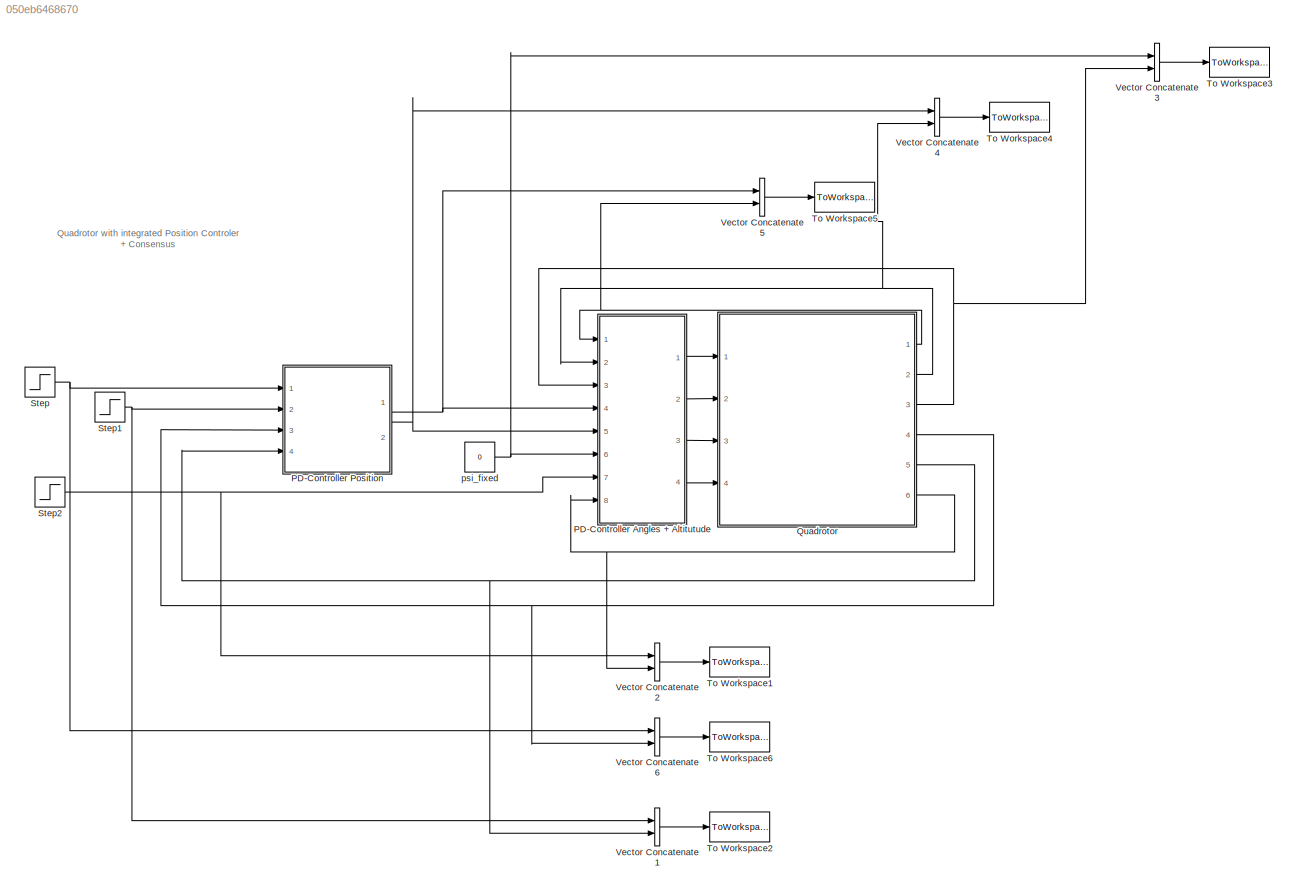
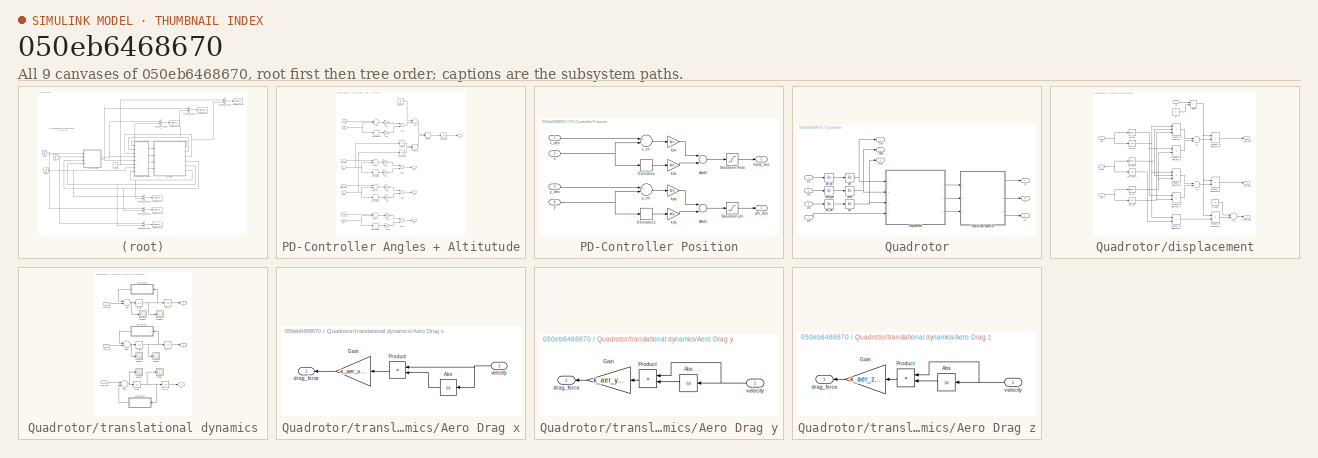
[diagram: thumbnail index - all 9 canvases of the model, root first then tree order]
MODEL slx_050eb6468670
KIND model
CONFIG AbsTol = auto
CONFIG FixedStep = 0.01
CONFIG MaxStep = 0.01
CONFIG MinStep = auto
CONFIG RelTol = 1e-3
CONFIG SampleTimeConstraint = Unconstrained
CONFIG Solver = ode45
CONFIG SolverMode = Auto
CONFIG SolverName = ode45
CONFIG StartTime = 0.0
CONFIG StopTime = 30
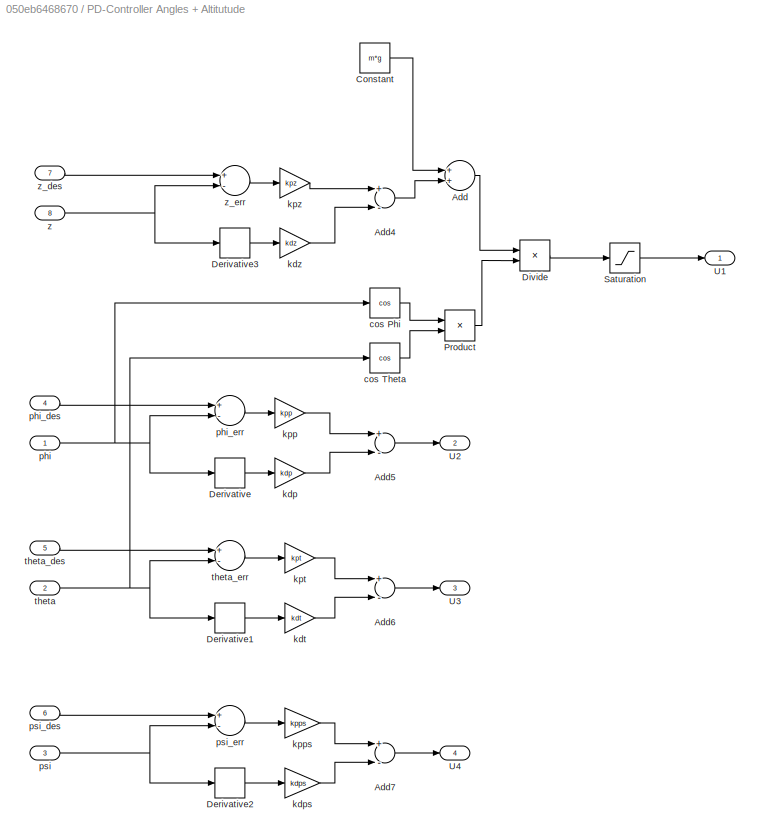
BLOCK [SubSystem] PD-Controller Angles + Altitutude
  Ports = [8, 4]
  RequestExecContextInheritance = off
  Variant = off
BLOCK [Sum] PD-Controller Angles + Altitutude/Add
  InputSameDT = off
  OutDataTypeStr = Inherit: Inherit via internal rule
  Ports = [2, 1]
  SaturateOnIntegerOverflow = off
BLOCK [Sum] PD-Controller Angles + Altitutude/Add4
  InputSameDT = off
  Inputs = +-
  OutDataTypeStr = Inherit: Inherit via internal rule
  Ports = [2, 1]
  SaturateOnIntegerOverflow = off
BLOCK [Sum] PD-Controller Angles + Altitutude/Add5
  InputSameDT = off
  Inputs = +-
  OutDataTypeStr = Inherit: Inherit via internal rule
  Ports = [2, 1]
  SaturateOnIntegerOverflow = off
BLOCK [Sum] PD-Controller Angles + Altitutude/Add6
  InputSameDT = off
  Inputs = +-
  OutDataTypeStr = Inherit: Inherit via internal rule
  Ports = [2, 1]
  SaturateOnIntegerOverflow = off
BLOCK [Sum] PD-Controller Angles + Altitutude/Add7
  InputSameDT = off
  Inputs = +-
  OutDataTypeStr = Inherit: Inherit via internal rule
  Ports = [2, 1]
  SaturateOnIntegerOverflow = off
BLOCK [Constant] PD-Controller Angles + Altitutude/Constant
  Value = m*g
BLOCK [Derivative] PD-Controller Angles + Altitutude/Derivative
BLOCK [Derivative] PD-Controller Angles + Altitutude/Derivative1
BLOCK [Derivative] PD-Controller Angles + Altitutude/Derivative2
BLOCK [Derivative] PD-Controller Angles + Altitutude/Derivative3
BLOCK [Product] PD-Controller Angles + Altitutude/Divide
  InputSameDT = off
  Inputs = */
  OutDataTypeStr = Inherit: Inherit via internal rule
  Ports = [2, 1]
  RndMeth = Floor
  SaturateOnIntegerOverflow = off
BLOCK [Product] PD-Controller Angles + Altitutude/Product
  InputSameDT = off
  OutDataTypeStr = Inherit: Inherit via internal rule
  Ports = [2, 1]
  SaturateOnIntegerOverflow = off
BLOCK [Saturate] PD-Controller Angles + Altitutude/Saturation
  InputPortMap = u0
  LowerLimit = 0
  Ports = [1, 1]
  UpperLimit = f_thrust_limit_up
  ZeroCross = off
BLOCK [Outport] PD-Controller Angles + Altitutude/U1
  IconDisplay = Port number
BLOCK [Outport] PD-Controller Angles + Altitutude/U2
  IconDisplay = Port number
  Port = 2
BLOCK [Outport] PD-Controller Angles + Altitutude/U3
  IconDisplay = Port number
  Port = 3
BLOCK [Outport] PD-Controller Angles + Altitutude/U4
  IconDisplay = Port number
  Port = 4
BLOCK [Trigonometry] PD-Controller Angles + Altitutude/cos Phi
  Operator = cos
  Ports = [1, 1]
BLOCK [Trigonometry] PD-Controller Angles + Altitutude/cos Theta
  Operator = cos
  Ports = [1, 1]
BLOCK [Gain] PD-Controller Angles + Altitutude/kdp
  Gain = kdp
  OutDataTypeStr = Inherit: Inherit via internal rule
  ParamDataTypeStr = Inherit: Inherit via internal rule
  SaturateOnIntegerOverflow = off
BLOCK [Gain] PD-Controller Angles + Altitutude/kdps
  Gain = kdps
  OutDataTypeStr = Inherit: Inherit via internal rule
  ParamDataTypeStr = Inherit: Inherit via internal rule
  SaturateOnIntegerOverflow = off
BLOCK [Gain] PD-Controller Angles + Altitutude/kdt
  Gain = kdt
  OutDataTypeStr = Inherit: Inherit via internal rule
  ParamDataTypeStr = Inherit: Inherit via internal rule
  SaturateOnIntegerOverflow = off
BLOCK [Gain] PD-Controller Angles + Altitutude/kdz
  Gain = kdz
  OutDataTypeStr = Inherit: Inherit via internal rule
  ParamDataTypeStr = Inherit: Inherit via internal rule
  SaturateOnIntegerOverflow = off
BLOCK [Gain] PD-Controller Angles + Altitutude/kpp
  Gain = kpp
  OutDataTypeStr = Inherit: Inherit via internal rule
  ParamDataTypeStr = Inherit: Inherit via internal rule
  SaturateOnIntegerOverflow = off
BLOCK [Gain] PD-Controller Angles + Altitutude/kpps
  Gain = kpps
  OutDataTypeStr = Inherit: Inherit via internal rule
  ParamDataTypeStr = Inherit: Inherit via internal rule
  SaturateOnIntegerOverflow = off
BLOCK [Gain] PD-Controller Angles + Altitutude/kpt
  Gain = kpt
  OutDataTypeStr = Inherit: Inherit via internal rule
  ParamDataTypeStr = Inherit: Inherit via internal rule
  SaturateOnIntegerOverflow = off
BLOCK [Gain] PD-Controller Angles + Altitutude/kpz
  Gain = kpz
  OutDataTypeStr = Inherit: Inherit via internal rule
  ParamDataTypeStr = Inherit: Inherit via internal rule
  SaturateOnIntegerOverflow = off
BLOCK [Inport] PD-Controller Angles + Altitutude/phi
  IconDisplay = Port number
BLOCK [Inport] PD-Controller Angles + Altitutude/phi_des
  IconDisplay = Port number
  Port = 4
BLOCK [Sum] PD-Controller Angles + Altitutude/phi_err
  InputSameDT = off
  Inputs = +-
  OutDataTypeStr = Inherit: Inherit via internal rule
  Ports = [2, 1]
  SaturateOnIntegerOverflow = off
BLOCK [Inport] PD-Controller Angles + Altitutude/psi
  IconDisplay = Port number
  Port = 3
BLOCK [Inport] PD-Controller Angles + Altitutude/psi_des
  IconDisplay = Port number
  Port = 6
BLOCK [Sum] PD-Controller Angles + Altitutude/psi_err
  InputSameDT = off
  Inputs = +-
  OutDataTypeStr = Inherit: Inherit via internal rule
  Ports = [2, 1]
  SaturateOnIntegerOverflow = off
BLOCK [Inport] PD-Controller Angles + Altitutude/theta
  IconDisplay = Port number
  Port = 2
BLOCK [Inport] PD-Controller Angles + Altitutude/theta_des
  IconDisplay = Port number
  Port = 5
BLOCK [Sum] PD-Controller Angles + Altitutude/theta_err
  InputSameDT = off
  Inputs = +-
  OutDataTypeStr = Inherit: Inherit via internal rule
  Ports = [2, 1]
  SaturateOnIntegerOverflow = off
BLOCK [Inport] PD-Controller Angles + Altitutude/z
  IconDisplay = Port number
  Port = 8
BLOCK [Inport] PD-Controller Angles + Altitutude/z_des
  IconDisplay = Port number
  Port = 7
BLOCK [Sum] PD-Controller Angles + Altitutude/z_err
  InputSameDT = off
  Inputs = +-
  OutDataTypeStr = Inherit: Inherit via internal rule
  Ports = [2, 1]
  SaturateOnIntegerOverflow = off
BLOCK [SubSystem] PD-Controller Position
  Ports = [4, 2]
  RequestExecContextInheritance = off
  Variant = off
BLOCK [Sum] PD-Controller Position/Add1
  InputSameDT = off
  Inputs = +-
  OutDataTypeStr = Inherit: Inherit via internal rule
  Ports = [2, 1]
  SaturateOnIntegerOverflow = off
BLOCK [Sum] PD-Controller Position/Add5
  InputSameDT = off
  Inputs = +-
  OutDataTypeStr = Inherit: Inherit via internal rule
  Ports = [2, 1]
  SaturateOnIntegerOverflow = off
BLOCK [Derivative] PD-Controller Position/Derivative
BLOCK [Derivative] PD-Controller Position/Derivative1
BLOCK [Saturate] PD-Controller Position/Saturation phi
  InputPortMap = u0
  LowerLimit = -max_phi
  Ports = [1, 1]
  UpperLimit = max_phi
  ZeroCross = off
BLOCK [Saturate] PD-Controller Position/Saturation theta
  InputPortMap = u0
  LowerLimit = -max_theta
  Ports = [1, 1]
  UpperLimit = max_theta
  ZeroCross = off
BLOCK [Gain] PD-Controller Position/kdx
  Gain = kdx
  OutDataTypeStr = Inherit: Inherit via internal rule
  ParamDataTypeStr = Inherit: Inherit via internal rule
  SaturateOnIntegerOverflow = off
BLOCK [Gain] PD-Controller Position/kdy
  Gain = kdy
  OutDataTypeStr = Inherit: Inherit via internal rule
  ParamDataTypeStr = Inherit: Inherit via internal rule
  SaturateOnIntegerOverflow = off
BLOCK [Gain] PD-Controller Position/kpx
  Gain = kpx
  OutDataTypeStr = Inherit: Inherit via internal rule
  ParamDataTypeStr = Inherit: Inherit via internal rule
  SaturateOnIntegerOverflow = off
BLOCK [Gain] PD-Controller Position/kpy
  Gain = kpy
  OutDataTypeStr = Inherit: Inherit via internal rule
  ParamDataTypeStr = Inherit: Inherit via internal rule
  SaturateOnIntegerOverflow = off
BLOCK [Outport] PD-Controller Position/phi_des
  IconDisplay = Port number
BLOCK [Outport] PD-Controller Position/theta_des
  IconDisplay = Port number
  Port = 2
BLOCK [Inport] PD-Controller Position/x
  IconDisplay = Port number
  Port = 3
BLOCK [Inport] PD-Controller Position/x_des
  IconDisplay = Port number
BLOCK [Sum] PD-Controller Position/x_err
  InputSameDT = off
  Inputs = +-
  OutDataTypeStr = Inherit: Inherit via internal rule
  Ports = [2, 1]
  SaturateOnIntegerOverflow = off
BLOCK [Inport] PD-Controller Position/y
  IconDisplay = Port number
  Port = 4
BLOCK [Inport] PD-Controller Position/y_des
  IconDisplay = Port number
  Port = 2
BLOCK [Sum] PD-Controller Position/y_err
  InputSameDT = off
  Inputs = +-
  OutDataTypeStr = Inherit: Inherit via internal rule
  Ports = [2, 1]
  SaturateOnIntegerOverflow = off
BLOCK [SubSystem] Quadrotor
  Ports = [4, 6]
  RequestExecContextInheritance = off
  Variant = off
BLOCK [Outport] Quadrotor/Phi
  IconDisplay = Port number
BLOCK [Outport] Quadrotor/Psi
  IconDisplay = Port number
  Port = 3
BLOCK [Outport] Quadrotor/Theta
  IconDisplay = Port number
  Port = 2
BLOCK [Inport] Quadrotor/U1
  IconDisplay = Port number
BLOCK [Inport] Quadrotor/U2
  IconDisplay = Port number
  Port = 2
BLOCK [Inport] Quadrotor/U3
  IconDisplay = Port number
  Port = 3
BLOCK [Inport] Quadrotor/U4
  IconDisplay = Port number
  Port = 4
BLOCK [Outport] Quadrotor/X
  IconDisplay = Port number
  Port = 4
BLOCK [Outport] Quadrotor/Y
  IconDisplay = Port number
  Port = 5
BLOCK [Outport] Quadrotor/Z
  IconDisplay = Port number
  Port = 6
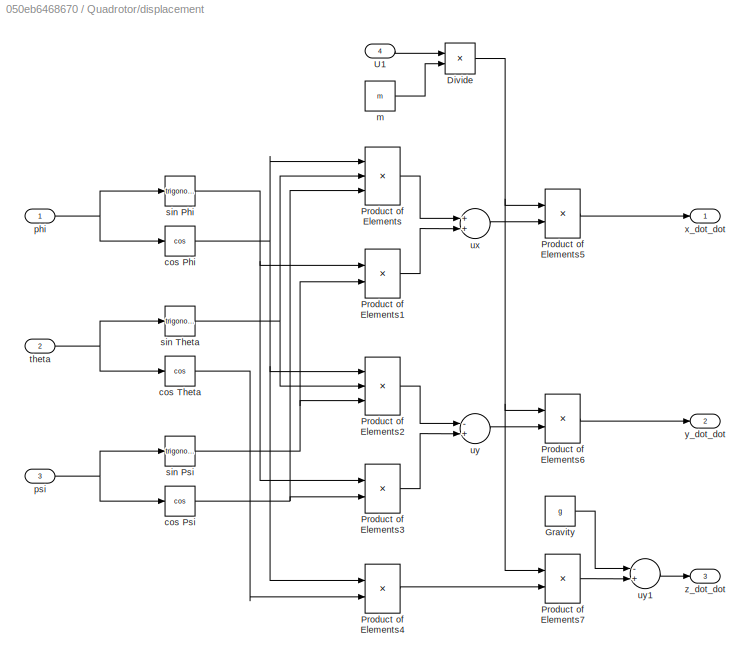
BLOCK [SubSystem] Quadrotor/displacement
  Ports = [4, 3]
  RequestExecContextInheritance = off
  Variant = off
BLOCK [Product] Quadrotor/displacement/Divide
  InputSameDT = off
  Inputs = */
  OutDataTypeStr = Inherit: Inherit via internal rule
  Ports = [2, 1]
  RndMeth = Floor
  SaturateOnIntegerOverflow = off
BLOCK [Constant] Quadrotor/displacement/Gravity
  Value = g
BLOCK [Product] Quadrotor/displacement/Product of Elements
  InputSameDT = off
  Inputs = 3
  OutDataTypeStr = Inherit: Inherit via internal rule
  Ports = [3, 1]
  RndMeth = Floor
  SaturateOnIntegerOverflow = off
BLOCK [Product] Quadrotor/displacement/Product of Elements1
  InputSameDT = off
  OutDataTypeStr = Inherit: Inherit via internal rule
  Ports = [2, 1]
  RndMeth = Floor
  SaturateOnIntegerOverflow = off
BLOCK [Product] Quadrotor/displacement/Product of Elements2
  InputSameDT = off
  Inputs = 3
  OutDataTypeStr = Inherit: Inherit via internal rule
  Ports = [3, 1]
  RndMeth = Floor
  SaturateOnIntegerOverflow = off
BLOCK [Product] Quadrotor/displacement/Product of Elements3
  InputSameDT = off
  OutDataTypeStr = Inherit: Inherit via internal rule
  Ports = [2, 1]
  RndMeth = Floor
  SaturateOnIntegerOverflow = off
BLOCK [Product] Quadrotor/displacement/Product of Elements4
  InputSameDT = off
  OutDataTypeStr = Inherit: Inherit via internal rule
  Ports = [2, 1]
  RndMeth = Floor
  SaturateOnIntegerOverflow = off
BLOCK [Product] Quadrotor/displacement/Product of Elements5
  InputSameDT = off
  OutDataTypeStr = Inherit: Inherit via internal rule
  Ports = [2, 1]
  RndMeth = Floor
  SaturateOnIntegerOverflow = off
BLOCK [Product] Quadrotor/displacement/Product of Elements6
  InputSameDT = off
  OutDataTypeStr = Inherit: Inherit via internal rule
  Ports = [2, 1]
  RndMeth = Floor
  SaturateOnIntegerOverflow = off
BLOCK [Product] Quadrotor/displacement/Product of Elements7
  InputSameDT = off
  OutDataTypeStr = Inherit: Inherit via internal rule
  Ports = [2, 1]
  RndMeth = Floor
  SaturateOnIntegerOverflow = off
BLOCK [Inport] Quadrotor/displacement/U1
  IconDisplay = Port number
  Port = 4
BLOCK [Trigonometry] Quadrotor/displacement/cos Phi
  Operator = cos
  Ports = [1, 1]
BLOCK [Trigonometry] Quadrotor/displacement/cos Psi
  Operator = cos
  Ports = [1, 1]
BLOCK [Trigonometry] Quadrotor/displacement/cos Theta
  Operator = cos
  Ports = [1, 1]
BLOCK [Constant] Quadrotor/displacement/m
  Value = m
BLOCK [Inport] Quadrotor/displacement/phi
  IconDisplay = Port number
BLOCK [Inport] Quadrotor/displacement/psi
  IconDisplay = Port number
  Port = 3
BLOCK [Trigonometry] Quadrotor/displacement/sin Phi
  Ports = [1, 1]
BLOCK [Trigonometry] Quadrotor/displacement/sin Psi
  Ports = [1, 1]
BLOCK [Trigonometry] Quadrotor/displacement/sin Theta
  Ports = [1, 1]
BLOCK [Inport] Quadrotor/displacement/theta
  IconDisplay = Port number
  Port = 2
BLOCK [Sum] Quadrotor/displacement/ux
  InputSameDT = off
  OutDataTypeStr = Inherit: Inherit via internal rule
  Ports = [2, 1]
  SaturateOnIntegerOverflow = off
BLOCK [Sum] Quadrotor/displacement/uy
  InputSameDT = off
  Inputs = -+
  OutDataTypeStr = Inherit: Inherit via internal rule
  Ports = [2, 1]
  SaturateOnIntegerOverflow = off
BLOCK [Sum] Quadrotor/displacement/uy1
  InputSameDT = off
  Inputs = -+
  OutDataTypeStr = Inherit: Inherit via internal rule
  Ports = [2, 1]
  SaturateOnIntegerOverflow = off
BLOCK [Outport] Quadrotor/displacement/x_dot_dot
  IconDisplay = Port number
BLOCK [Outport] Quadrotor/displacement/y_dot_dot
  IconDisplay = Port number
  Port = 2
BLOCK [Outport] Quadrotor/displacement/z_dot_dot
  IconDisplay = Port number
  Port = 3
BLOCK [Integrator] Quadrotor/phi
  Ports = [1, 1]
  ZeroCross = off
BLOCK [Integrator] Quadrotor/phi_dot
  Ports = [1, 1]
BLOCK [Integrator] Quadrotor/psi
  Ports = [1, 1]
  ZeroCross = off
BLOCK [Integrator] Quadrotor/psi_dot
  Ports = [1, 1]
  ZeroCross = off
BLOCK [Integrator] Quadrotor/theta
  Ports = [1, 1]
  ZeroCross = off
BLOCK [Integrator] Quadrotor/theta_dot
  Ports = [1, 1]
  ZeroCross = off
BLOCK [SubSystem] Quadrotor/translational dynamics
  Ports = [3, 3]
  RequestExecContextInheritance = off
  Variant = off
BLOCK [Integrator] Quadrotor/translational dynamics/Act X
  Ports = [1, 1]
BLOCK [Integrator] Quadrotor/translational dynamics/Act Y
  Ports = [1, 1]
BLOCK [Integrator] Quadrotor/translational dynamics/Act Z
  Ports = [1, 1]
BLOCK [Sum] Quadrotor/translational dynamics/Add
  InputSameDT = off
  Inputs = -+
  OutDataTypeStr = Inherit: Inherit via internal rule
  Ports = [2, 1]
  SaturateOnIntegerOverflow = off
BLOCK [Sum] Quadrotor/translational dynamics/Add1
  InputSameDT = off
  Inputs = -+
  OutDataTypeStr = Inherit: Inherit via internal rule
  Ports = [2, 1]
  SaturateOnIntegerOverflow = off
BLOCK [Sum] Quadrotor/translational dynamics/Add2
  InputSameDT = off
  Inputs = +-
  OutDataTypeStr = Inherit: Inherit via internal rule
  Ports = [2, 1]
  SaturateOnIntegerOverflow = off
BLOCK [SubSystem] Quadrotor/translational dynamics/Aero Drag x
  Ports = [1, 1]
  RequestExecContextInheritance = off
  Variant = off
BLOCK [Abs] Quadrotor/translational dynamics/Aero Drag x/Abs
  SaturateOnIntegerOverflow = off
BLOCK [Gain] Quadrotor/translational dynamics/Aero Drag x/Gain
  Gain = k_aer_x/m
  OutDataTypeStr = Inherit: Inherit via internal rule
  ParamDataTypeStr = Inherit: Inherit via internal rule
  SaturateOnIntegerOverflow = off
BLOCK [Product] Quadrotor/translational dynamics/Aero Drag x/Product
  InputSameDT = off
  OutDataTypeStr = Inherit: Inherit via internal rule
  Ports = [2, 1]
  RndMeth = Floor
  SaturateOnIntegerOverflow = off
BLOCK [Outport] Quadrotor/translational dynamics/Aero Drag x/drag_force
  IconDisplay = Port number
BLOCK [Inport] Quadrotor/translational dynamics/Aero Drag x/velocity
  IconDisplay = Port number
BLOCK [SubSystem] Quadrotor/translational dynamics/Aero Drag y
  Ports = [1, 1]
  RequestExecContextInheritance = off
  Variant = off
BLOCK [Abs] Quadrotor/translational dynamics/Aero Drag y/Abs
  SaturateOnIntegerOverflow = off
BLOCK [Gain] Quadrotor/translational dynamics/Aero Drag y/Gain
  Gain = k_aer_y/m
  OutDataTypeStr = Inherit: Inherit via internal rule
  ParamDataTypeStr = Inherit: Inherit via internal rule
  SaturateOnIntegerOverflow = off
BLOCK [Product] Quadrotor/translational dynamics/Aero Drag y/Product
  InputSameDT = off
  OutDataTypeStr = Inherit: Inherit via internal rule
  Ports = [2, 1]
  RndMeth = Floor
  SaturateOnIntegerOverflow = off
BLOCK [Outport] Quadrotor/translational dynamics/Aero Drag y/drag_force
  IconDisplay = Port number
BLOCK [Inport] Quadrotor/translational dynamics/Aero Drag y/velocity
  IconDisplay = Port number
BLOCK [SubSystem] Quadrotor/translational dynamics/Aero Drag z
  Ports = [1, 1]
  RequestExecContextInheritance = off
  Variant = off
BLOCK [Abs] Quadrotor/translational dynamics/Aero Drag z/Abs
  SaturateOnIntegerOverflow = off
BLOCK [Gain] Quadrotor/translational dynamics/Aero Drag z/Gain
  Gain = k_aer_z/m
  OutDataTypeStr = Inherit: Inherit via internal rule
  ParamDataTypeStr = Inherit: Inherit via internal rule
  SaturateOnIntegerOverflow = off
BLOCK [Product] Quadrotor/translational dynamics/Aero Drag z/Product
  InputSameDT = off
  OutDataTypeStr = Inherit: Inherit via internal rule
  Ports = [2, 1]
  RndMeth = Floor
  SaturateOnIntegerOverflow = off
BLOCK [Outport] Quadrotor/translational dynamics/Aero Drag z/drag_force
  IconDisplay = Port number
BLOCK [Inport] Quadrotor/translational dynamics/Aero Drag z/velocity
  IconDisplay = Port number
BLOCK [Scope] Quadrotor/translational dynamics/Scope
  Ports = [1]
  ScopeSpecificationString = Simulink.scopes.TimeScopeBlockCfg('CurrentConfiguration', extmgr.ConfigurationSet(extmgr.Configuration('Core','General UI',true),extmgr.Configuration('Core','Source UI',true),extmgr.Configuration('Sources','WiredSimulink',true,'DataLoggingVariableName','ScopeData1'),extmgr.Configuration('Visuals','Time Domain',true,'SerializedDisplays',{struct('MinYLimReal','-0.00000000000000005','MaxYLimReal','0....<+1506ch>
BLOCK [Scope] Quadrotor/translational dynamics/Scope1
  Ports = [1]
  ScopeSpecificationString = Simulink.scopes.TimeScopeBlockCfg('CurrentConfiguration', extmgr.ConfigurationSet(extmgr.Configuration('Core','General UI',true),extmgr.Configuration('Core','Source UI',true),extmgr.Configuration('Sources','WiredSimulink',true,'DataLoggingVariableName','ScopeData2'),extmgr.Configuration('Visuals','Time Domain',true,'SerializedDisplays',{struct('MinYLimReal','-0.74786','MaxYLimReal','0.74343','YLab...<+1443ch>
BLOCK [Scope] Quadrotor/translational dynamics/Scope2
  Ports = [1]
  ScopeSpecificationString = Simulink.scopes.TimeScopeBlockCfg('CurrentConfiguration', extmgr.ConfigurationSet(extmgr.Configuration('Core','General UI',true),extmgr.Configuration('Core','Source UI',true),extmgr.Configuration('Sources','WiredSimulink',true,'DataLoggingVariableName','ScopeData3'),extmgr.Configuration('Visuals','Time Domain',true,'SerializedDisplays',{struct('MinYLimReal','1.48414','MaxYLimReal','1.49781','YLabe...<+1433ch>
BLOCK [Scope] Quadrotor/translational dynamics/Scope3
  Ports = [1]
  ScopeSpecificationString = Simulink.scopes.TimeScopeBlockCfg('CurrentConfiguration', extmgr.ConfigurationSet(extmgr.Configuration('Core','General UI',true),extmgr.Configuration('Core','Source UI',true),extmgr.Configuration('Sources','WiredSimulink',true,'DataLoggingVariableName','ScopeData1'),extmgr.Configuration('Visuals','Time Domain',true,'SerializedDisplays',{struct('MinYLimReal','-1.03462','MaxYLimReal','0.71134','YLab...<+1436ch>
BLOCK [Scope] Quadrotor/translational dynamics/Scope4
  Ports = [1]
  ScopeSpecificationString = Simulink.scopes.TimeScopeBlockCfg('CurrentConfiguration', extmgr.ConfigurationSet(extmgr.Configuration('Core','General UI',true),extmgr.Configuration('Core','Source UI',true),extmgr.Configuration('Sources','WiredSimulink',true,'DataLoggingVariableName','ScopeData2'),extmgr.Configuration('Visuals','Time Domain',true,'SerializedDisplays',{struct('MinYLimReal','-11.03625','MaxYLimReal','1.22625','YLa...<+1413ch>
BLOCK [Scope] Quadrotor/translational dynamics/Scope5
  Ports = [1]
  ScopeSpecificationString = C++SS(StrPVP('SaveName','ScopeData1'),StrPVP('SaveName','ScopeData3'))
BLOCK [Outport] Quadrotor/translational dynamics/X
  IconDisplay = Port number
BLOCK [Integrator] Quadrotor/translational dynamics/X dot
  Ports = [1, 1]
BLOCK [Outport] Quadrotor/translational dynamics/Y
  IconDisplay = Port number
  Port = 2
BLOCK [Integrator] Quadrotor/translational dynamics/Y dot
  Ports = [1, 1]
BLOCK [Outport] Quadrotor/translational dynamics/Z
  IconDisplay = Port number
  Port = 3
BLOCK [Integrator] Quadrotor/translational dynamics/Z dot
  Ports = [1, 1]
BLOCK [Inport] Quadrotor/translational dynamics/x_dot_dot
  IconDisplay = Port number
BLOCK [Inport] Quadrotor/translational dynamics/y_dot_dot
  IconDisplay = Port number
  Port = 2
BLOCK [Inport] Quadrotor/translational dynamics/z_dot_dot
  IconDisplay = Port number
  Port = 3
BLOCK [Step] Step
  After = 30
  SampleTime = 0
  Time = 2
BLOCK [Step] Step1
  After = 0
  SampleTime = 0
  Time = 2
BLOCK [Step] Step2
  After = 0
  SampleTime = 0
  Time = 2
BLOCK [ToWorkspace] To Workspace1
  FixptAsFi = on
  MaxDataPoints = inf
  Ports = [1]
  SampleTime = -1
  Save2DSignal = 3-D array (concatenate along third dimension)
  SaveFormat = Timeseries
  VariableName = quad_z
BLOCK [ToWorkspace] To Workspace2
  FixptAsFi = on
  MaxDataPoints = inf
  Ports = [1]
  SampleTime = -1
  Save2DSignal = 3-D array (concatenate along third dimension)
  SaveFormat = Timeseries
  VariableName = quad_y
BLOCK [ToWorkspace] To Workspace3
  FixptAsFi = on
  MaxDataPoints = inf
  Ports = [1]
  SampleTime = -1
  Save2DSignal = 3-D array (concatenate along third dimension)
  SaveFormat = Timeseries
  VariableName = quad_psi
BLOCK [ToWorkspace] To Workspace4
  FixptAsFi = on
  MaxDataPoints = inf
  Ports = [1]
  SampleTime = -1
  Save2DSignal = 3-D array (concatenate along third dimension)
  SaveFormat = Timeseries
  VariableName = quad_theta
BLOCK [ToWorkspace] To Workspace5
  FixptAsFi = on
  MaxDataPoints = inf
  Ports = [1]
  SampleTime = -1
  Save2DSignal = 3-D array (concatenate along third dimension)
  SaveFormat = Timeseries
  VariableName = quad_phi
BLOCK [ToWorkspace] To Workspace6
  FixptAsFi = on
  MaxDataPoints = inf
  Ports = [1]
  SampleTime = -1
  Save2DSignal = 3-D array (concatenate along third dimension)
  SaveFormat = Timeseries
  VariableName = quad_x
BLOCK [Concatenate] Vector Concatenate1
  Ports = [2, 1]
BLOCK [Concatenate] Vector Concatenate2
  Ports = [2, 1]
BLOCK [Concatenate] Vector Concatenate3
  Ports = [2, 1]
BLOCK [Concatenate] Vector Concatenate4
  Ports = [2, 1]
BLOCK [Concatenate] Vector Concatenate5
  Ports = [2, 1]
BLOCK [Concatenate] Vector Concatenate6
  Ports = [2, 1]
BLOCK [Constant] psi_fixed
  Value = 0
ANNOTATION (root): Quadrotor with integrated Position Controler + Consensus
LINE PD-Controller Angles + Altitutude/Add4:1 -> PD-Controller Angles + Altitutude/Add:2
LINE PD-Controller Angles + Altitutude/Add5:1 -> PD-Controller Angles + Altitutude/U2:1
LINE PD-Controller Angles + Altitutude/Add6:1 -> PD-Controller Angles + Altitutude/U3:1
LINE PD-Controller Angles + Altitutude/Add7:1 -> PD-Controller Angles + Altitutude/U4:1
LINE PD-Controller Angles + Altitutude/Add:1 -> PD-Controller Angles + Altitutude/Divide:1
LINE PD-Controller Angles + Altitutude/Constant:1 -> PD-Controller Angles + Altitutude/Add:1
LINE PD-Controller Angles + Altitutude/Derivative1:1 -> PD-Controller Angles + Altitutude/kdt:1
LINE PD-Controller Angles + Altitutude/Derivative2:1 -> PD-Controller Angles + Altitutude/kdps:1
LINE PD-Controller Angles + Altitutude/Derivative3:1 -> PD-Controller Angles + Altitutude/kdz:1
LINE PD-Controller Angles + Altitutude/Derivative:1 -> PD-Controller Angles + Altitutude/kdp:1
LINE PD-Controller Angles + Altitutude/Divide:1 -> PD-Controller Angles + Altitutude/Saturation:1
LINE PD-Controller Angles + Altitutude/Product:1 -> PD-Controller Angles + Altitutude/Divide:2
LINE PD-Controller Angles + Altitutude/Saturation:1 -> PD-Controller Angles + Altitutude/U1:1
LINE PD-Controller Angles + Altitutude/cos Phi:1 -> PD-Controller Angles + Altitutude/Product:1
LINE PD-Controller Angles + Altitutude/cos Theta:1 -> PD-Controller Angles + Altitutude/Product:2
LINE PD-Controller Angles + Altitutude/kdp:1 -> PD-Controller Angles + Altitutude/Add5:2
LINE PD-Controller Angles + Altitutude/kdps:1 -> PD-Controller Angles + Altitutude/Add7:2
LINE PD-Controller Angles + Altitutude/kdt:1 -> PD-Controller Angles + Altitutude/Add6:2
LINE PD-Controller Angles + Altitutude/kdz:1 -> PD-Controller Angles + Altitutude/Add4:2
LINE PD-Controller Angles + Altitutude/kpp:1 -> PD-Controller Angles + Altitutude/Add5:1
LINE PD-Controller Angles + Altitutude/kpps:1 -> PD-Controller Angles + Altitutude/Add7:1
LINE PD-Controller Angles + Altitutude/kpt:1 -> PD-Controller Angles + Altitutude/Add6:1
LINE PD-Controller Angles + Altitutude/kpz:1 -> PD-Controller Angles + Altitutude/Add4:1
NET PD-Controller Angles + Altitutude/phi:1 -> PD-Controller Angles + Altitutude/Derivative:1, PD-Controller Angles + Altitutude/cos Phi:1, PD-Controller Angles + Altitutude/phi_err:2
LINE PD-Controller Angles + Altitutude/phi_des:1 -> PD-Controller Angles + Altitutude/phi_err:1
LINE PD-Controller Angles + Altitutude/phi_err:1 -> PD-Controller Angles + Altitutude/kpp:1
NET PD-Controller Angles + Altitutude/psi:1 -> PD-Controller Angles + Altitutude/Derivative2:1, PD-Controller Angles + Altitutude/psi_err:2
LINE PD-Controller Angles + Altitutude/psi_des:1 -> PD-Controller Angles + Altitutude/psi_err:1
LINE PD-Controller Angles + Altitutude/psi_err:1 -> PD-Controller Angles + Altitutude/kpps:1
NET PD-Controller Angles + Altitutude/theta:1 -> PD-Controller Angles + Altitutude/Derivative1:1, PD-Controller Angles + Altitutude/cos Theta:1, PD-Controller Angles + Altitutude/theta_err:2
LINE PD-Controller Angles + Altitutude/theta_des:1 -> PD-Controller Angles + Altitutude/theta_err:1
LINE PD-Controller Angles + Altitutude/theta_err:1 -> PD-Controller Angles + Altitutude/kpt:1
NET PD-Controller Angles + Altitutude/z:1 -> PD-Controller Angles + Altitutude/Derivative3:1, PD-Controller Angles + Altitutude/z_err:2
LINE PD-Controller Angles + Altitutude/z_des:1 -> PD-Controller Angles + Altitutude/z_err:1
LINE PD-Controller Angles + Altitutude/z_err:1 -> PD-Controller Angles + Altitutude/kpz:1
LINE PD-Controller Angles + Altitutude:1 -> Quadrotor:1
LINE PD-Controller Angles + Altitutude:2 -> Quadrotor:2
LINE PD-Controller Angles + Altitutude:3 -> Quadrotor:3
LINE PD-Controller Angles + Altitutude:4 -> Quadrotor:4
LINE PD-Controller Position/Add1:1 -> PD-Controller Position/Saturation phi:1
LINE PD-Controller Position/Add5:1 -> PD-Controller Position/Saturation theta:1
LINE PD-Controller Position/Derivative1:1 -> PD-Controller Position/kdy:1
LINE PD-Controller Position/Derivative:1 -> PD-Controller Position/kdx:1
LINE PD-Controller Position/Saturation phi:1 -> PD-Controller Position/phi_des:1
LINE PD-Controller Position/Saturation theta:1 -> PD-Controller Position/theta_des:1
LINE PD-Controller Position/kdx:1 -> PD-Controller Position/Add5:2
LINE PD-Controller Position/kdy:1 -> PD-Controller Position/Add1:2
LINE PD-Controller Position/kpx:1 -> PD-Controller Position/Add5:1
LINE PD-Controller Position/kpy:1 -> PD-Controller Position/Add1:1
NET PD-Controller Position/x:1 -> PD-Controller Position/Derivative:1, PD-Controller Position/x_err:2
LINE PD-Controller Position/x_des:1 -> PD-Controller Position/x_err:1
LINE PD-Controller Position/x_err:1 -> PD-Controller Position/kpx:1
NET PD-Controller Position/y:1 -> PD-Controller Position/Derivative1:1, PD-Controller Position/y_err:2
LINE PD-Controller Position/y_des:1 -> PD-Controller Position/y_err:1
LINE PD-Controller Position/y_err:1 -> PD-Controller Position/kpy:1
NET PD-Controller Position:1 -> PD-Controller Angles + Altitutude:4, Vector Concatenate5:1
NET PD-Controller Position:2 -> PD-Controller Angles + Altitutude:5, Vector Concatenate4:1
LINE Quadrotor/U1:1 -> Quadrotor/displacement:4
LINE Quadrotor/U2:1 -> Quadrotor/phi_dot:1
LINE Quadrotor/U3:1 -> Quadrotor/theta_dot:1
LINE Quadrotor/U4:1 -> Quadrotor/psi_dot:1
NET Quadrotor/displacement/Divide:1 -> Quadrotor/displacement/Product of Elements5:1, Quadrotor/displacement/Product of Elements6:1, Quadrotor/displacement/Product of Elements7:1
LINE Quadrotor/displacement/Gravity:1 -> Quadrotor/displacement/uy1:1
LINE Quadrotor/displacement/Product of Elements1:1 -> Quadrotor/displacement/ux:2
LINE Quadrotor/displacement/Product of Elements2:1 -> Quadrotor/displacement/uy:1
LINE Quadrotor/displacement/Product of Elements3:1 -> Quadrotor/displacement/uy:2
LINE Quadrotor/displacement/Product of Elements4:1 -> Quadrotor/displacement/Product of Elements7:2
LINE Quadrotor/displacement/Product of Elements5:1 -> Quadrotor/displacement/x_dot_dot:1
LINE Quadrotor/displacement/Product of Elements6:1 -> Quadrotor/displacement/y_dot_dot:1
LINE Quadrotor/displacement/Product of Elements7:1 -> Quadrotor/displacement/uy1:2
LINE Quadrotor/displacement/Product of Elements:1 -> Quadrotor/displacement/ux:1
LINE Quadrotor/displacement/U1:1 -> Quadrotor/displacement/Divide:1
NET Quadrotor/displacement/cos Phi:1 -> Quadrotor/displacement/Product of Elements2:1, Quadrotor/displacement/Product of Elements4:1, Quadrotor/displacement/Product of Elements:1
NET Quadrotor/displacement/cos Psi:1 -> Quadrotor/displacement/Product of Elements3:2, Quadrotor/displacement/Product of Elements:3
LINE Quadrotor/displacement/cos Theta:1 -> Quadrotor/displacement/Product of Elements4:2
LINE Quadrotor/displacement/m:1 -> Quadrotor/displacement/Divide:2
NET Quadrotor/displacement/phi:1 -> Quadrotor/displacement/cos Phi:1, Quadrotor/displacement/sin Phi:1
NET Quadrotor/displacement/psi:1 -> Quadrotor/displacement/cos Psi:1, Quadrotor/displacement/sin Psi:1
NET Quadrotor/displacement/sin Phi:1 -> Quadrotor/displacement/Product of Elements1:1, Quadrotor/displacement/Product of Elements3:1
NET Quadrotor/displacement/sin Psi:1 -> Quadrotor/displacement/Product of Elements1:2, Quadrotor/displacement/Product of Elements2:3
NET Quadrotor/displacement/sin Theta:1 -> Quadrotor/displacement/Product of Elements2:2, Quadrotor/displacement/Product of Elements:2
NET Quadrotor/displacement/theta:1 -> Quadrotor/displacement/cos Theta:1, Quadrotor/displacement/sin Theta:1
LINE Quadrotor/displacement/ux:1 -> Quadrotor/displacement/Product of Elements5:2
LINE Quadrotor/displacement/uy1:1 -> Quadrotor/displacement/z_dot_dot:1
LINE Quadrotor/displacement/uy:1 -> Quadrotor/displacement/Product of Elements6:2
LINE Quadrotor/displacement:1 -> Quadrotor/translational dynamics:1
LINE Quadrotor/displacement:2 -> Quadrotor/translational dynamics:2
LINE Quadrotor/displacement:3 -> Quadrotor/translational dynamics:3
NET Quadrotor/phi:1 -> Quadrotor/Phi:1, Quadrotor/displacement:1
LINE Quadrotor/phi_dot:1 -> Quadrotor/phi:1
NET Quadrotor/psi:1 -> Quadrotor/Psi:1, Quadrotor/displacement:3
LINE Quadrotor/psi_dot:1 -> Quadrotor/psi:1
NET Quadrotor/theta:1 -> Quadrotor/Theta:1, Quadrotor/displacement:2
LINE Quadrotor/theta_dot:1 -> Quadrotor/theta:1
LINE Quadrotor/translational dynamics/Act X:1 -> Quadrotor/translational dynamics/X:1
LINE Quadrotor/translational dynamics/Act Y:1 -> Quadrotor/translational dynamics/Y:1
LINE Quadrotor/translational dynamics/Act Z:1 -> Quadrotor/translational dynamics/Z:1
NET Quadrotor/translational dynamics/Add1:1 -> Quadrotor/translational dynamics/Scope5:1, Quadrotor/translational dynamics/Y dot:1
NET Quadrotor/translational dynamics/Add2:1 -> Quadrotor/translational dynamics/Scope4:1, Quadrotor/translational dynamics/Z dot:1
NET Quadrotor/translational dynamics/Add:1 -> Quadrotor/translational dynamics/Scope3:1, Quadrotor/translational dynamics/X dot:1
LINE Quadrotor/translational dynamics/Aero Drag x/Abs:1 -> Quadrotor/translational dynamics/Aero Drag x/Product:2
LINE Quadrotor/translational dynamics/Aero Drag x/Gain:1 -> Quadrotor/translational dynamics/Aero Drag x/drag_force:1
LINE Quadrotor/translational dynamics/Aero Drag x/Product:1 -> Quadrotor/translational dynamics/Aero Drag x/Gain:1
NET Quadrotor/translational dynamics/Aero Drag x/velocity:1 -> Quadrotor/translational dynamics/Aero Drag x/Abs:1, Quadrotor/translational dynamics/Aero Drag x/Product:1
LINE Quadrotor/translational dynamics/Aero Drag x:1 -> Quadrotor/translational dynamics/Add:1
LINE Quadrotor/translational dynamics/Aero Drag y/Abs:1 -> Quadrotor/translational dynamics/Aero Drag y/Product:2
LINE Quadrotor/translational dynamics/Aero Drag y/Gain:1 -> Quadrotor/translational dynamics/Aero Drag y/drag_force:1
LINE Quadrotor/translational dynamics/Aero Drag y/Product:1 -> Quadrotor/translational dynamics/Aero Drag y/Gain:1
NET Quadrotor/translational dynamics/Aero Drag y/velocity:1 -> Quadrotor/translational dynamics/Aero Drag y/Abs:1, Quadrotor/translational dynamics/Aero Drag y/Product:1
LINE Quadrotor/translational dynamics/Aero Drag y:1 -> Quadrotor/translational dynamics/Add1:1
LINE Quadrotor/translational dynamics/Aero Drag z/Abs:1 -> Quadrotor/translational dynamics/Aero Drag z/Product:2
LINE Quadrotor/translational dynamics/Aero Drag z/Gain:1 -> Quadrotor/translational dynamics/Aero Drag z/drag_force:1
LINE Quadrotor/translational dynamics/Aero Drag z/Product:1 -> Quadrotor/translational dynamics/Aero Drag z/Gain:1
NET Quadrotor/translational dynamics/Aero Drag z/velocity:1 -> Quadrotor/translational dynamics/Aero Drag z/Abs:1, Quadrotor/translational dynamics/Aero Drag z/Product:1
LINE Quadrotor/translational dynamics/Aero Drag z:1 -> Quadrotor/translational dynamics/Add2:2
NET Quadrotor/translational dynamics/X dot:1 -> Quadrotor/translational dynamics/Act X:1, Quadrotor/translational dynamics/Aero Drag x:1, Quadrotor/translational dynamics/Scope2:1
NET Quadrotor/translational dynamics/Y dot:1 -> Quadrotor/translational dynamics/Act Y:1, Quadrotor/translational dynamics/Aero Drag y:1, Quadrotor/translational dynamics/Scope1:1
NET Quadrotor/translational dynamics/Z dot:1 -> Quadrotor/translational dynamics/Act Z:1, Quadrotor/translational dynamics/Aero Drag z:1, Quadrotor/translational dynamics/Scope:1
LINE Quadrotor/translational dynamics/x_dot_dot:1 -> Quadrotor/translational dynamics/Add:2
LINE Quadrotor/translational dynamics/y_dot_dot:1 -> Quadrotor/translational dynamics/Add1:2
LINE Quadrotor/translational dynamics/z_dot_dot:1 -> Quadrotor/translational dynamics/Add2:1
LINE Quadrotor/translational dynamics:1 -> Quadrotor/X:1
LINE Quadrotor/translational dynamics:2 -> Quadrotor/Y:1
LINE Quadrotor/translational dynamics:3 -> Quadrotor/Z:1
NET Quadrotor:1 -> PD-Controller Angles + Altitutude:1, Vector Concatenate5:2
NET Quadrotor:2 -> PD-Controller Angles + Altitutude:2, Vector Concatenate4:2
NET Quadrotor:3 -> PD-Controller Angles + Altitutude:3, Vector Concatenate3:2
NET Quadrotor:4 -> PD-Controller Position:3, Vector Concatenate6:2
NET Quadrotor:5 -> PD-Controller Position:4, Vector Concatenate1:2
NET Quadrotor:6 -> PD-Controller Angles + Altitutude:8, Vector Concatenate2:2
NET Step1:1 -> PD-Controller Position:2, Vector Concatenate1:1
NET Step2:1 -> PD-Controller Angles + Altitutude:7, Vector Concatenate2:1
NET Step:1 -> PD-Controller Position:1, Vector Concatenate6:1
LINE Vector Concatenate1:1 -> To Workspace2:1
LINE Vector Concatenate2:1 -> To Workspace1:1
LINE Vector Concatenate3:1 -> To Workspace3:1
LINE Vector Concatenate4:1 -> To Workspace4:1
LINE Vector Concatenate5:1 -> To Workspace5:1
LINE Vector Concatenate6:1 -> To Workspace6:1
NET psi_fixed:1 -> PD-Controller Angles + Altitutude:6, Vector Concatenate3:1
note: NET lines group one-source signal fan-out (src -> all destinations, sorted); 1:1 wires keep LINE
